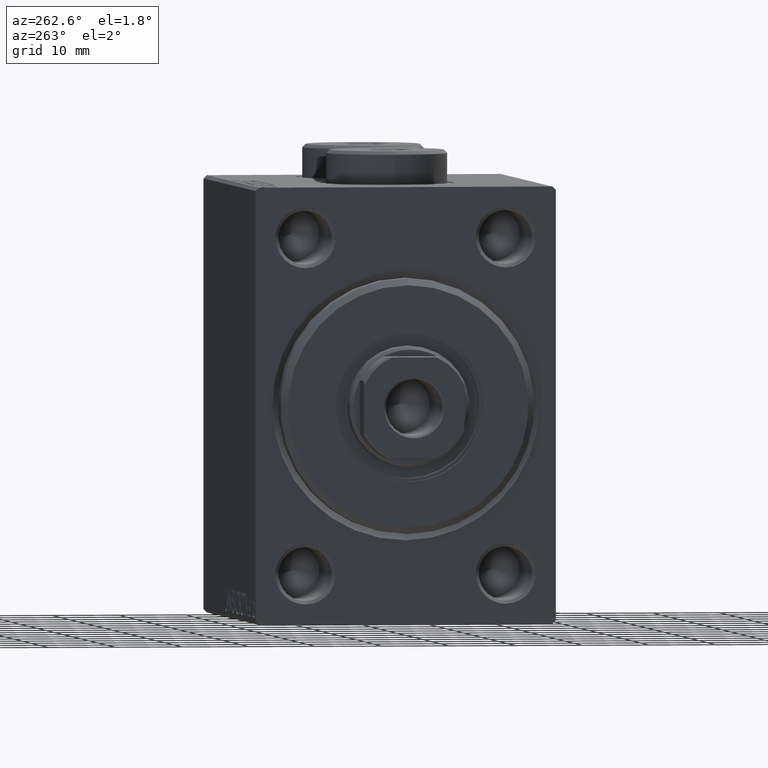
[diagram: clean part render]
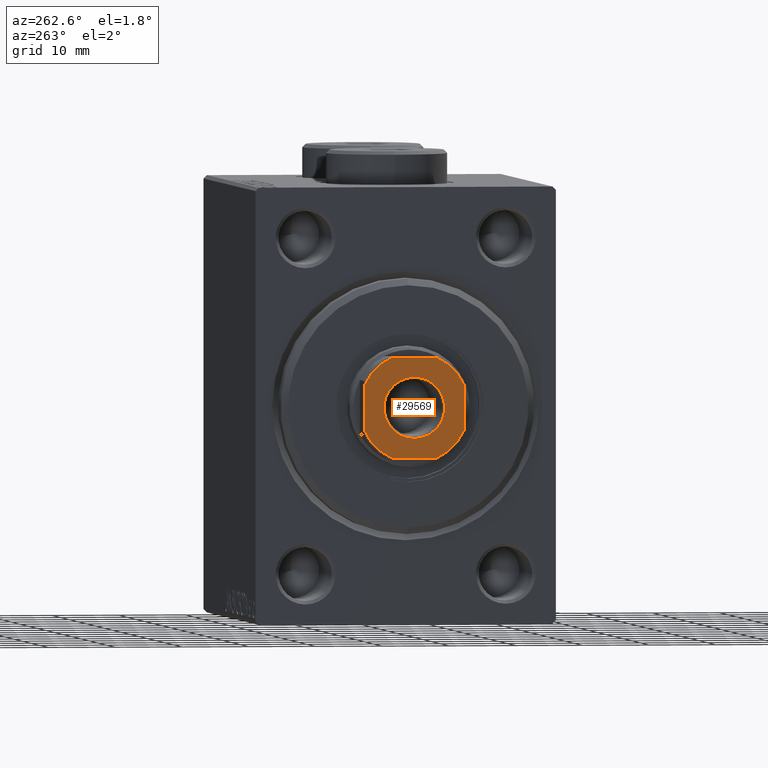
[diagram: same view with one face highlighted and labeled with its STEP entity id]
A machine part, auxiliary view. The second image highlights one B-rep face of the part: STEP entity #29569.
In plain terms, the highlighted planar face has unit normal (-1, 0, 0).
Its self-contained STEP definition (entity closure, byte-faithful):
#1363 = VECTOR ( 'NONE', #23074, 1000.000000000000000 ) ;
#1795 = VERTEX_POINT ( 'NONE', #9049 ) ;
#1881 = DIRECTION ( 'NONE',  ( -0.000000000000000000, 0.000000000000000000, 1.000000000000000000 ) ) ;
#2103 = CARTESIAN_POINT ( 'NONE',  ( 0.000000000000000000, 0.000000000000000000, 60.99999999999999289 ) ) ;
#3745 = VECTOR ( 'NONE', #33271, 1000.000000000000000 ) ;
#4109 = EDGE_CURVE ( 'NONE', #21936, #43223, #36572, .T. ) ;
#4403 = CIRCLE ( 'NONE', #6613, 4.549999999999991829 ) ;
#4478 = CARTESIAN_POINT ( 'NONE',  ( 0.000000000000000000, 0.000000000000000000, 60.99999999999999289 ) ) ;
#6056 = DIRECTION ( 'NONE',  ( -0.000000000000000000, 0.000000000000000000, 1.000000000000000000 ) ) ;
#6241 = DIRECTION ( 'NONE',  ( 1.000000000000000000, 0.000000000000000000, 0.000000000000000000 ) ) ;
#6520 = CIRCLE ( 'NONE', #44830, 8.199999999999990408 ) ;
#6531 = DIRECTION ( 'NONE',  ( -1.000000000000000000, 5.782411586589357392E-17, -0.000000000000000000 ) ) ;
#6613 = AXIS2_PLACEMENT_3D ( 'NONE', #44750, #9024, #23063 ) ;
#6933 = VERTEX_POINT ( 'NONE', #43640 ) ;
#7628 = ORIENTED_EDGE ( 'NONE', *, *, #15876, .T. ) ;
#7662 = CARTESIAN_POINT ( 'NONE',  ( 3.315116890850148934, 7.500000000000000888, 60.99999999999999289 ) ) ;
#8799 = CARTESIAN_POINT ( 'NONE',  ( -7.499999999999999112, -7.499999999999998224, 60.99999999999999289 ) ) ;
#9024 = DIRECTION ( 'NONE',  ( 0.000000000000000000, -0.000000000000000000, -1.000000000000000000 ) ) ;
#9049 = CARTESIAN_POINT ( 'NONE',  ( -7.499999999999999112, -3.315116890850132059, 60.99999999999999289 ) ) ;
#10000 = LINE ( 'NONE', #30279, #30129 ) ;
#10625 = CARTESIAN_POINT ( 'NONE',  ( 4.549999999999991829, 0.000000000000000000, 60.99999999999999289 ) ) ;
#10925 = VERTEX_POINT ( 'NONE', #37368 ) ;
#11025 = AXIS2_PLACEMENT_3D ( 'NONE', #26178, #43946, #37061 ) ;
#11224 = DIRECTION ( 'NONE',  ( 1.000000000000000000, 0.000000000000000000, 0.000000000000000000 ) ) ;
#11301 = DIRECTION ( 'NONE',  ( -0.000000000000000000, 0.000000000000000000, 1.000000000000000000 ) ) ;
#12068 = EDGE_CURVE ( 'NONE', #32003, #34916, #4403, .T. ) ;
#12516 = CARTESIAN_POINT ( 'NONE',  ( 7.499999999999997335, 7.500000000000000888, 60.99999999999999289 ) ) ;
#12564 = ORIENTED_EDGE ( 'NONE', *, *, #27997, .T. ) ;
#12595 = EDGE_CURVE ( 'NONE', #24445, #10925, #13237, .T. ) ;
#12789 = LINE ( 'NONE', #41393, #26560 ) ;
#13029 = ORIENTED_EDGE ( 'NONE', *, *, #19894, .T. ) ;
#13237 = CIRCLE ( 'NONE', #11025, 8.200000000000011724 ) ;
#14221 = CARTESIAN_POINT ( 'NONE',  ( 0.000000000000000000, 0.000000000000000000, 60.99999999999999289 ) ) ;
#15082 = DIRECTION ( 'NONE',  ( -0.000000000000000000, 0.000000000000000000, 1.000000000000000000 ) ) ;
#15876 = EDGE_CURVE ( 'NONE', #10925, #32080, #27252, .T. ) ;
#16391 = ORIENTED_EDGE ( 'NONE', *, *, #20811, .T. ) ;
#16963 = ORIENTED_EDGE ( 'NONE', *, *, #12595, .T. ) ;
#17400 = EDGE_LOOP ( 'NONE', ( #23248, #16391 ) ) ;
#17408 = ORIENTED_EDGE ( 'NONE', *, *, #27259, .T. ) ;
#17513 = CARTESIAN_POINT ( 'NONE',  ( -4.549999999999991829, 5.572142936120446480E-16, 60.99999999999999289 ) ) ;
#19880 = ORIENTED_EDGE ( 'NONE', *, *, #31515, .T. ) ;
#19894 = EDGE_CURVE ( 'NONE', #43223, #1795, #12789, .T. ) ;
#20158 = DIRECTION ( 'NONE',  ( 1.734723475976807094E-16, -1.000000000000000000, 0.000000000000000000 ) ) ;
#20811 = EDGE_CURVE ( 'NONE', #34916, #32003, #43524, .T. ) ;
#21759 = FACE_OUTER_BOUND ( 'NONE', #35411, .T. ) ;
#21936 = VERTEX_POINT ( 'NONE', #28961 ) ;
#22105 = CARTESIAN_POINT ( 'NONE',  ( 7.499999999999998224, 3.315116890850154263, 60.99999999999999289 ) ) ;
#22495 = VERTEX_POINT ( 'NONE', #7662 ) ;
#22544 = AXIS2_PLACEMENT_3D ( 'NONE', #41103, #6056, #26316 ) ;
#23063 = DIRECTION ( 'NONE',  ( 1.000000000000000000, 0.000000000000000000, 0.000000000000000000 ) ) ;
#23074 = DIRECTION ( 'NONE',  ( 1.000000000000000000, 0.000000000000000000, 0.000000000000000000 ) ) ;
#23248 = ORIENTED_EDGE ( 'NONE', *, *, #12068, .T. ) ;
#24445 = VERTEX_POINT ( 'NONE', #40938 ) ;
#24990 = FACE_BOUND ( 'NONE', #17400, .T. ) ;
#25227 = DIRECTION ( 'NONE',  ( 1.000000000000000000, 0.000000000000000000, 0.000000000000000000 ) ) ;
#25759 = CARTESIAN_POINT ( 'NONE',  ( -7.500000000000000888, 3.315116890850160036, 60.99999999999999289 ) ) ;
#25961 = AXIS2_PLACEMENT_3D ( 'NONE', #35746, #11301, #32273 ) ;
#26178 = CARTESIAN_POINT ( 'NONE',  ( 0.000000000000000000, 0.000000000000000000, 60.99999999999999289 ) ) ;
#26316 = DIRECTION ( 'NONE',  ( 1.000000000000000000, 0.000000000000000000, 0.000000000000000000 ) ) ;
#26560 = VECTOR ( 'NONE', #20158, 1000.000000000000000 ) ;
#27252 = LINE ( 'NONE', #12516, #3745 ) ;
#27259 = EDGE_CURVE ( 'NONE', #6933, #24445, #36484, .T. ) ;
#27997 = EDGE_CURVE ( 'NONE', #1795, #6933, #6520, .T. ) ;
#28491 = DIRECTION ( 'NONE',  ( 0.000000000000000000, -0.000000000000000000, -1.000000000000000000 ) ) ;
#28626 = AXIS2_PLACEMENT_3D ( 'NONE', #4478, #15082, #25227 ) ;
#28961 = CARTESIAN_POINT ( 'NONE',  ( -3.315116890850159148, 7.500000000000000888, 60.99999999999999289 ) ) ;
#29569 = ADVANCED_FACE ( 'NONE', ( #24990, #21759 ), #39536, .T. ) ;
#30129 = VECTOR ( 'NONE', #6531, 1000.000000000000000 ) ;
#30279 = CARTESIAN_POINT ( 'NONE',  ( -7.500000000000001776, 7.500000000000001776, 60.99999999999999289 ) ) ;
#31284 = ORIENTED_EDGE ( 'NONE', *, *, #4109, .T. ) ;
#31515 = EDGE_CURVE ( 'NONE', #22495, #21936, #10000, .T. ) ;
#32003 = VERTEX_POINT ( 'NONE', #10625 ) ;
#32080 = VERTEX_POINT ( 'NONE', #22105 ) ;
#32273 = DIRECTION ( 'NONE',  ( 1.000000000000000000, 0.000000000000000000, 0.000000000000000000 ) ) ;
#32510 = AXIS2_PLACEMENT_3D ( 'NONE', #14221, #28491, #11224 ) ;
#33271 = DIRECTION ( 'NONE',  ( -1.156482317317871478E-16, 1.000000000000000000, -0.000000000000000000 ) ) ;
#34916 = VERTEX_POINT ( 'NONE', #17513 ) ;
#35411 = EDGE_LOOP ( 'NONE', ( #7628, #39446, #19880, #31284, #13029, #12564, #17408, #16963 ) ) ;
#35746 = CARTESIAN_POINT ( 'NONE',  ( 0.000000000000000000, 0.000000000000000000, 60.99999999999999289 ) ) ;
#36484 = LINE ( 'NONE', #8799, #1363 ) ;
#36572 = CIRCLE ( 'NONE', #22544, 8.200000000000002842 ) ;
#37061 = DIRECTION ( 'NONE',  ( 1.000000000000000000, 0.000000000000000000, 0.000000000000000000 ) ) ;
#37368 = CARTESIAN_POINT ( 'NONE',  ( 7.499999999999998224, -3.315116890850184461, 60.99999999999999289 ) ) ;
#38495 = CIRCLE ( 'NONE', #25961, 8.199999999999997513 ) ;
#39446 = ORIENTED_EDGE ( 'NONE', *, *, #44675, .T. ) ;
#39536 = PLANE ( 'NONE',  #28626 ) ;
#40938 = CARTESIAN_POINT ( 'NONE',  ( 3.315116890850187570, -7.499999999999996447, 60.99999999999999289 ) ) ;
#41103 = CARTESIAN_POINT ( 'NONE',  ( 0.000000000000000000, 0.000000000000000000, 60.99999999999999289 ) ) ;
#41393 = CARTESIAN_POINT ( 'NONE',  ( -7.500000000000001776, 7.500000000000001776, 60.99999999999999289 ) ) ;
#43223 = VERTEX_POINT ( 'NONE', #25759 ) ;
#43524 = CIRCLE ( 'NONE', #32510, 4.549999999999991829 ) ;
#43640 = CARTESIAN_POINT ( 'NONE',  ( -3.315116890850136500, -7.499999999999998224, 60.99999999999999289 ) ) ;
#43946 = DIRECTION ( 'NONE',  ( -0.000000000000000000, 0.000000000000000000, 1.000000000000000000 ) ) ;
#44675 = EDGE_CURVE ( 'NONE', #32080, #22495, #38495, .T. ) ;
#44750 = CARTESIAN_POINT ( 'NONE',  ( 0.000000000000000000, 0.000000000000000000, 60.99999999999999289 ) ) ;
#44830 = AXIS2_PLACEMENT_3D ( 'NONE', #2103, #1881, #6241 ) ;